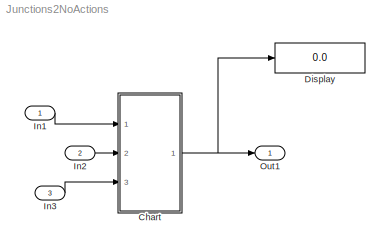
MODEL Junctions2NoActions
KIND model
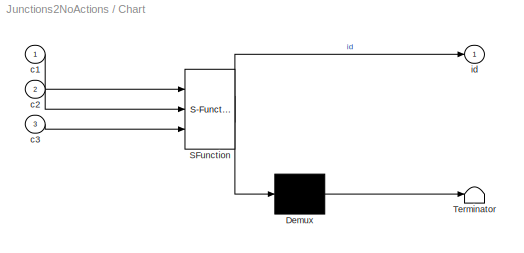
BLOCK [SubSystem] Chart
  ErrorFcn = Stateflow.Translate.translate
  PermitHierarchicalResolution = ExplicitOnly
  Ports = [3, 1]
  RequestExecContextInheritance = off
  SFBlockType = Chart
  SID = 1
  TreatAsAtomicUnit = on
  Variant = off
BLOCK [Demux] Chart/ Demux 
  Outputs = 1
  Ports = [1, 1]
  SID = 1::18
BLOCK [S-Function] Chart/ SFunction 
  EnableBusSupport = on
  FunctionName = sf_sfun
  PortCounts = [3 2]
  Ports = [3, 2]
  SFcnIsStateOwnerBlock = off
  SFunctionDeploymentMode = off
  SID = 1::17
  Tag = Stateflow S-Function Junctions2NoActions 1
BLOCK [Terminator] Chart/ Terminator 
  SID = 1::19
BLOCK [Inport] Chart/c1
  IconDisplay = Port number
  SID = 1::27
BLOCK [Inport] Chart/c2
  IconDisplay = Port number
  Port = 2
  SID = 1::28
BLOCK [Inport] Chart/c3
  IconDisplay = Port number
  Port = 3
  SID = 1::29
BLOCK [Outport] Chart/id
  IconDisplay = Port number
  SID = 1::30
BLOCK [Display] Display
  Decimation = 1
  Ports = [1]
  SID = 14
BLOCK [Inport] In1
  IconDisplay = Port number
  OutDataTypeStr = boolean
  SID = 26
BLOCK [Inport] In2
  IconDisplay = Port number
  OutDataTypeStr = boolean
  Port = 2
  SID = 27
BLOCK [Inport] In3
  IconDisplay = Port number
  OutDataTypeStr = boolean
  Port = 3
  SID = 28
BLOCK [Outport] Out1
  IconDisplay = Port number
  SID = 25
LINE Chart/ Demux :1 -> Chart/ Terminator :1
LINE Chart/ SFunction :1 -> Chart/ Demux :1
LINE Chart/ SFunction :2 -> Chart/id:1
LINE Chart/c1:1 -> Chart/ SFunction :1
LINE Chart/c2:1 -> Chart/ SFunction :2
LINE Chart/c3:1 -> Chart/ SFunction :3
NET Chart:1 -> Display:1, Out1:1
LINE In1:1 -> Chart:1
LINE In2:1 -> Chart:2
LINE In3:1 -> Chart:3
note: NET lines group one-source signal fan-out (src -> all destinations, sorted); 1:1 wires keep LINE
CHART Chart states=4 transitions=6
  STATE_LABEL 'A\\nen: id=1;'
  STATE_LABEL 'C\\nen: id=4;'
  STATE_LABEL 'B\\nen: id = 2;'
  STATE_LABEL 'D\\nen: id = 3;'
